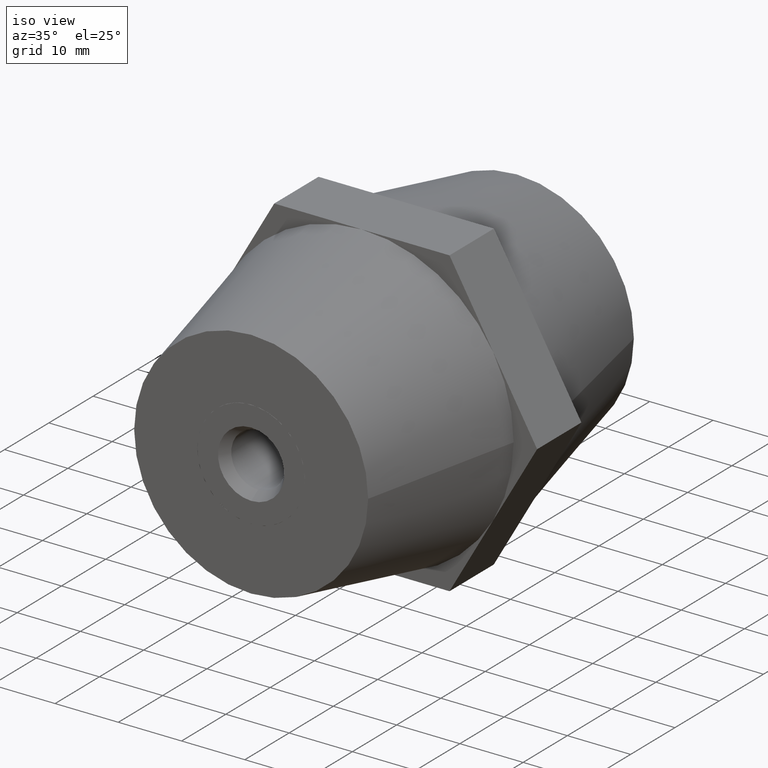
[diagram: clean part render]
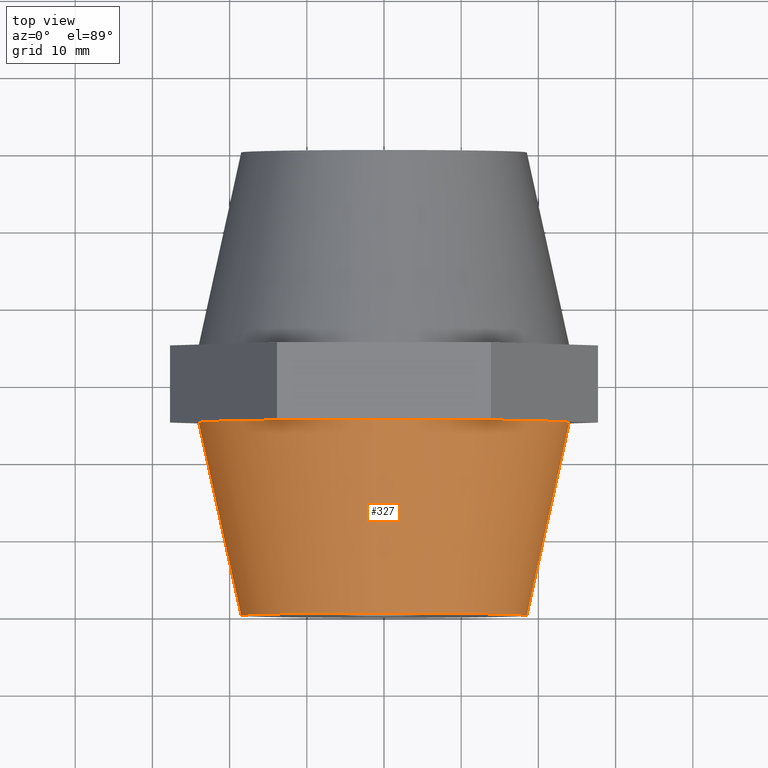
[diagram: tour spotlight — one face highlighted and labeled with its STEP entity id]
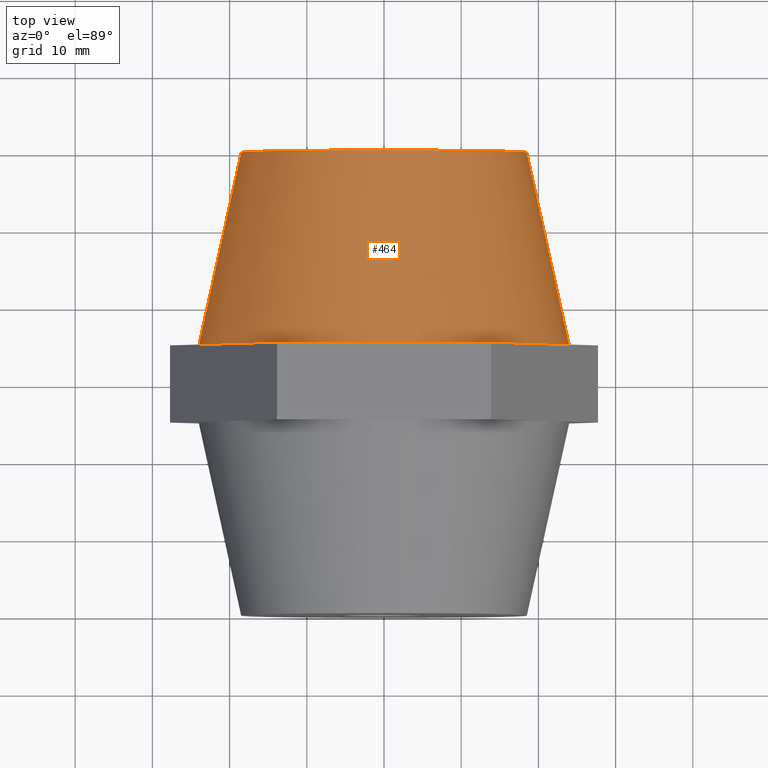
[diagram: tour spotlight — one face highlighted and labeled with its STEP entity id]
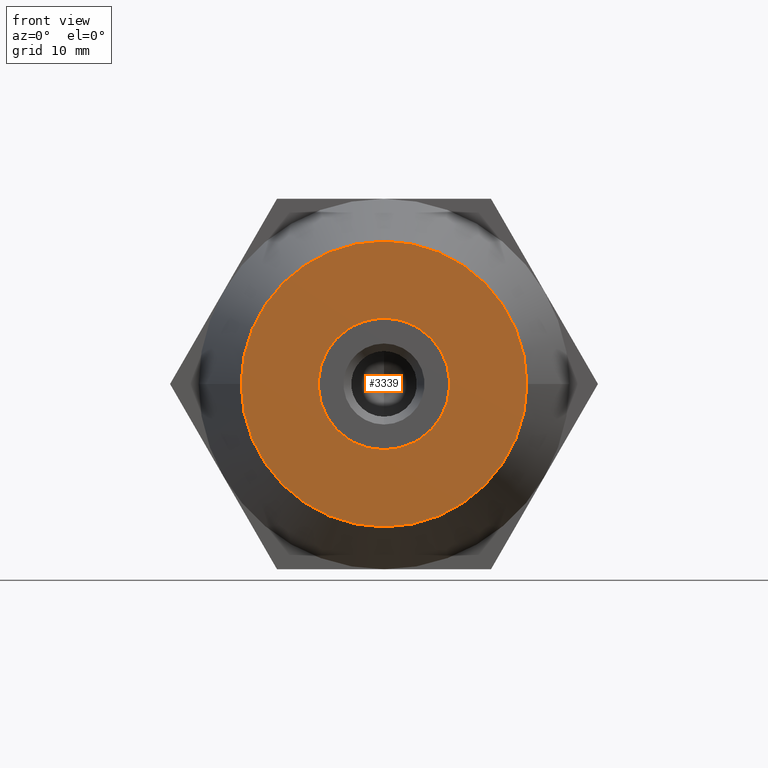
[diagram: tour spotlight — one face highlighted and labeled with its STEP entity id]
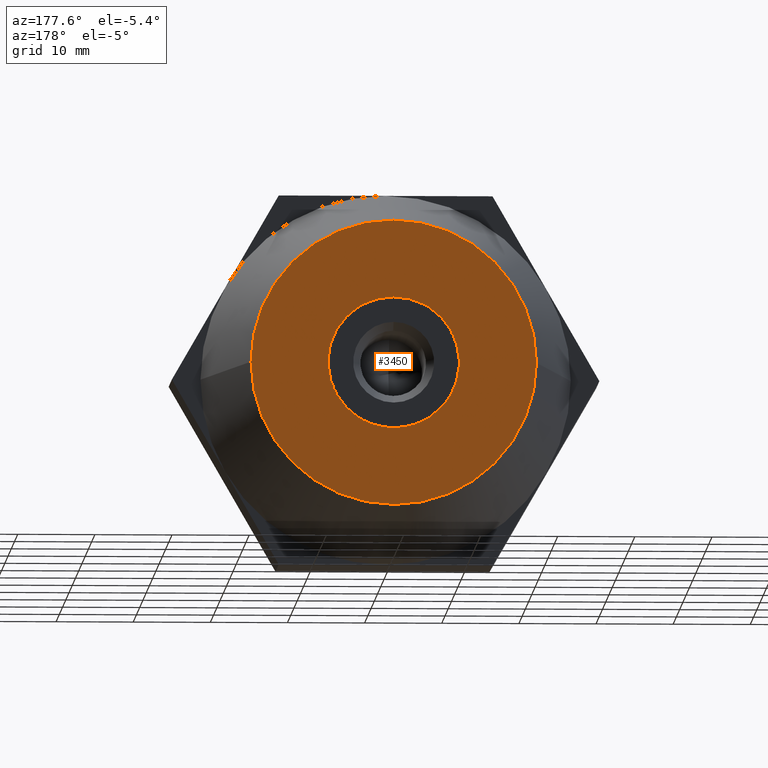
[diagram: tour spotlight — one face highlighted and labeled with its STEP entity id]
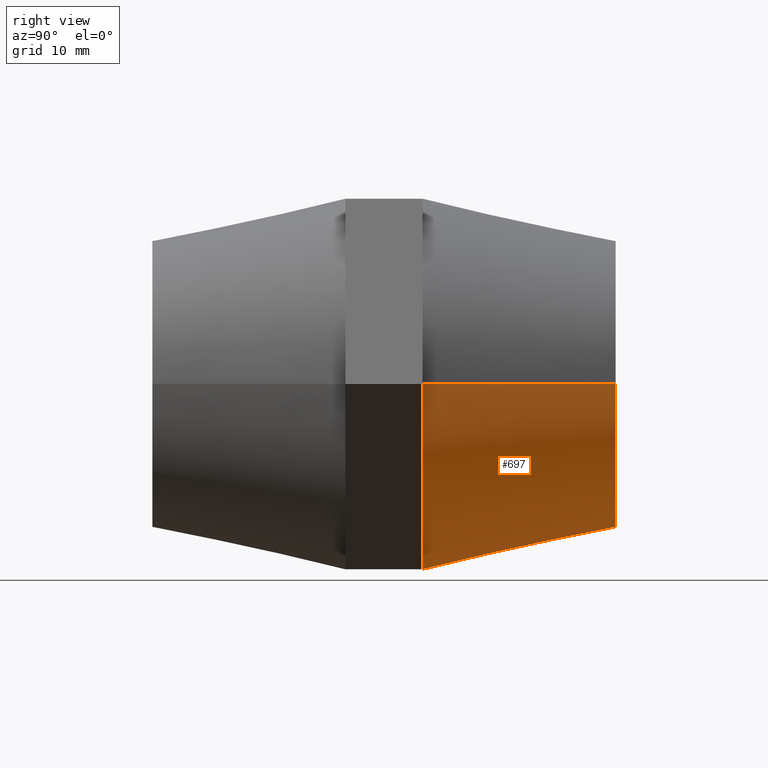
[diagram: tour spotlight — one face highlighted and labeled with its STEP entity id]
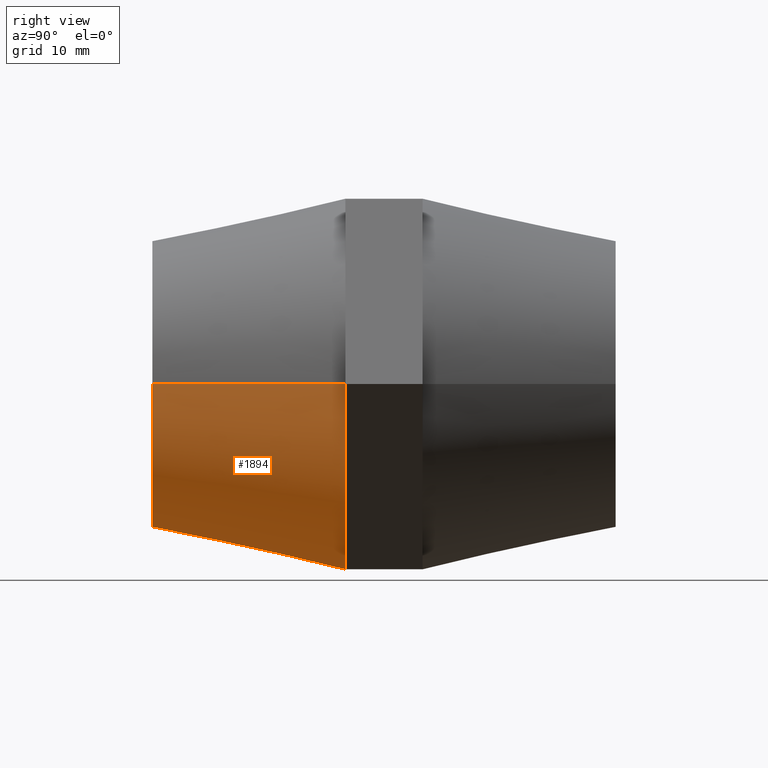
[diagram: tour spotlight — one face highlighted and labeled with its STEP entity id]
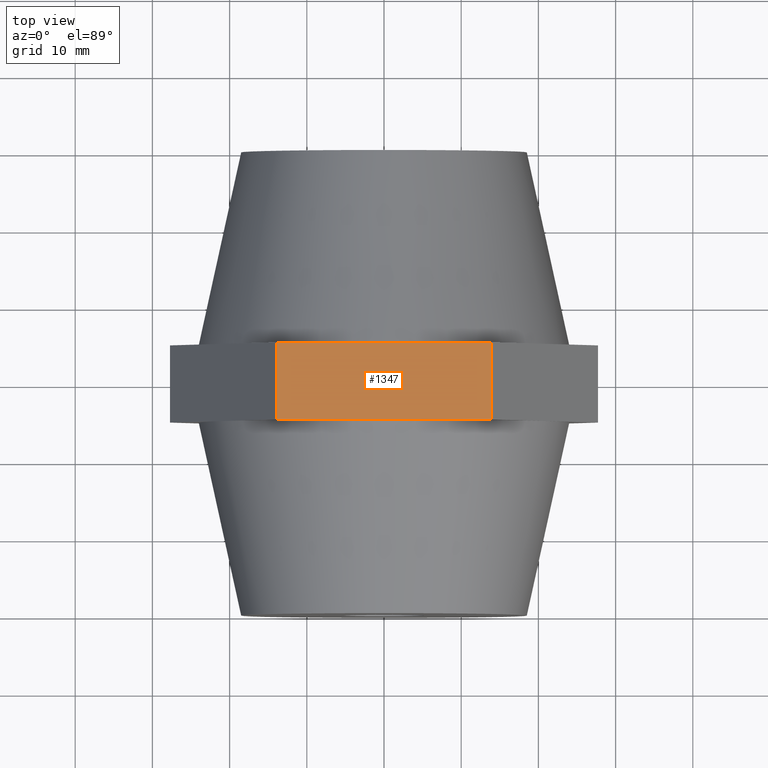
[diagram: tour spotlight — one face highlighted and labeled with its STEP entity id]
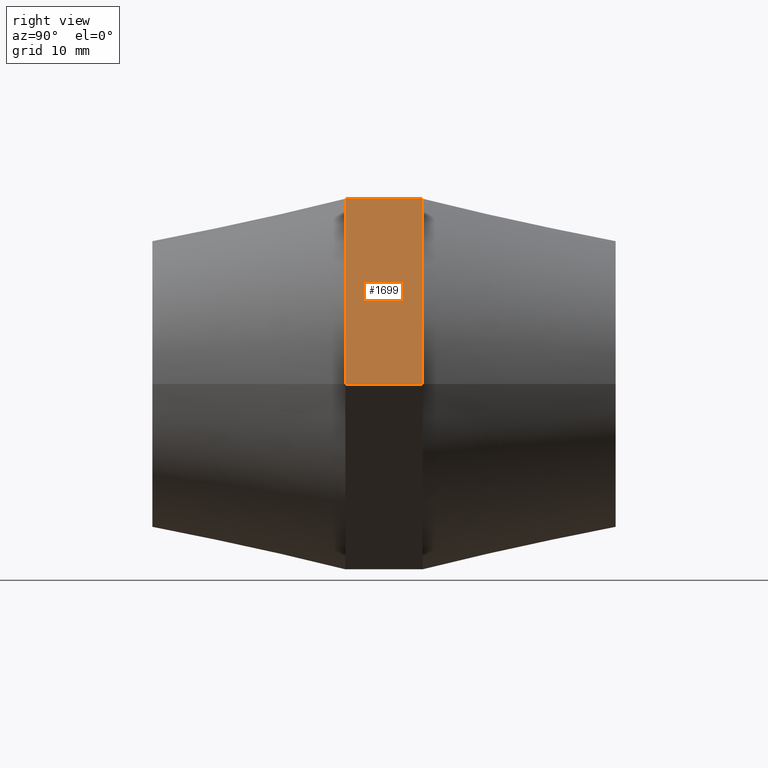
[diagram: tour spotlight — one face highlighted and labeled with its STEP entity id]
A machine part: a face-by-face anatomy tour. The part has 162 B-rep faces; the first image is the clean iso view, then the 8 largest visible faces are spotlighted one at a time (largest first), each with its STEP entity span.

Face 1 — top view, entity #327. In plain terms, the highlighted conical surface has half-angle 12.407 deg.
Definition (entity closure, byte-faithful):
#99 = DIRECTION ( 'NONE',  ( -1.000000000000000000, -1.875376730785737500E-016, 0.0000000000000000000 ) ) ;
#215 = CIRCLE ( 'NONE', #2376, 24.00000000000000000 ) ;
#228 = CARTESIAN_POINT ( 'NONE',  ( -20.78460969082650000, -5.000000000000000000, 12.00000000000000000 ) ) ;
#247 = CARTESIAN_POINT ( 'NONE',  ( 4.286263797015734900E-015, -5.000000000000000000, 6.466135099498040200E-016 ) ) ;
#270 = DIRECTION ( 'NONE',  ( 0.0000000000000000000, 1.000000000000000000, 0.0000000000000000000 ) ) ;
#327 = ADVANCED_FACE ( 'NONE', ( #2589 ), #1469, .T. ) ;
#440 = VERTEX_POINT ( 'NONE', #3892 ) ;
#480 = EDGE_CURVE ( 'NONE', #2529, #2316, #1755, .T. ) ;
#485 = EDGE_CURVE ( 'NONE', #440, #2135, #854, .T. ) ;
#579 = CARTESIAN_POINT ( 'NONE',  ( 1.281634599541417800E-015, -5.000000000000000000, 24.00000000000000000 ) ) ;
#699 = DIRECTION ( 'NONE',  ( 0.0000000000000000000, 1.000000000000000000, 0.0000000000000000000 ) ) ;
#759 = VERTEX_POINT ( 'NONE', #1194 ) ;
#818 = ORIENTED_EDGE ( 'NONE', *, *, #480, .F. ) ;
#854 = LINE ( 'NONE', #1175, #2072 ) ;
#874 = ORIENTED_EDGE ( 'NONE', *, *, #2423, .F. ) ;
#903 = EDGE_CURVE ( 'NONE', #1938, #1136, #3830, .T. ) ;
#1091 = ORIENTED_EDGE ( 'NONE', *, *, #903, .F. ) ;
#1108 = EDGE_CURVE ( 'NONE', #759, #1938, #1715, .T. ) ;
#1111 = DIRECTION ( 'NONE',  ( -1.000000000000000000, -1.084202172485504400E-016, 0.0000000000000000000 ) ) ;
#1136 = VERTEX_POINT ( 'NONE', #228 ) ;
#1170 = DIRECTION ( 'NONE',  ( 0.0000000000000000000, 1.000000000000000000, 0.0000000000000000000 ) ) ;
#1175 = CARTESIAN_POINT ( 'NONE',  ( 24.00000000000000400, -4.999999999999997300, 2.939152317953647900E-015 ) ) ;
#1194 = CARTESIAN_POINT ( 'NONE',  ( -18.49999999999999300, -30.00000000000000400, 0.0000000000000000000 ) ) ;
#1310 = CARTESIAN_POINT ( 'NONE',  ( 4.286263797015734900E-015, -5.000000000000000000, 0.0000000000000000000 ) ) ;
#1316 = CIRCLE ( 'NONE', #3623, 18.50000000000000000 ) ;
#1469 = CONICAL_SURFACE ( 'NONE', #1912, 24.00000000000000000, 0.2165503049760894300 ) ;
#1551 = CARTESIAN_POINT ( 'NONE',  ( 24.00000000000000400, -5.000000000000000000, 2.939152317953647900E-015 ) ) ;
#1646 = CARTESIAN_POINT ( 'NONE',  ( 4.286263797015734900E-015, -5.000000000000000000, 6.466135099498040200E-016 ) ) ;
#1715 = LINE ( 'NONE', #2648, #2327 ) ;
#1747 = DIRECTION ( 'NONE',  ( 0.0000000000000000000, 0.0000000000000000000, 1.000000000000000000 ) ) ;
#1753 = ORIENTED_EDGE ( 'NONE', *, *, #2677, .F. ) ;
#1755 = CIRCLE ( 'NONE', #2561, 24.00000000000000000 ) ;
#1912 = AXIS2_PLACEMENT_3D ( 'NONE', #3853, #3863, #1111 ) ;
#1929 = DIRECTION ( 'NONE',  ( 0.0000000000000000000, 0.0000000000000000000, 1.000000000000000000 ) ) ;
#1938 = VERTEX_POINT ( 'NONE', #2488 ) ;
#2072 = VECTOR ( 'NONE', #3937, 1000.000000000000000 ) ;
#2079 = AXIS2_PLACEMENT_3D ( 'NONE', #1310, #2547, #2277 ) ;
#2107 = EDGE_CURVE ( 'NONE', #759, #440, #1316, .T. ) ;
#2128 = DIRECTION ( 'NONE',  ( 0.0000000000000000000, 0.0000000000000000000, 1.000000000000000000 ) ) ;
#2135 = VERTEX_POINT ( 'NONE', #1551 ) ;
#2277 = DIRECTION ( 'NONE',  ( -1.000000000000000000, -1.084202172485504400E-016, 0.0000000000000000000 ) ) ;
#2316 = VERTEX_POINT ( 'NONE', #2452 ) ;
#2327 = VECTOR ( 'NONE', #3883, 1000.000000000000100 ) ;
#2376 = AXIS2_PLACEMENT_3D ( 'NONE', #247, #1170, #2128 ) ;
#2423 = EDGE_CURVE ( 'NONE', #2316, #2135, #215, .T. ) ;
#2428 = ORIENTED_EDGE ( 'NONE', *, *, #485, .T. ) ;
#2452 = CARTESIAN_POINT ( 'NONE',  ( 20.78460969082655300, -5.000000000000000000, 12.00000000000000000 ) ) ;
#2488 = CARTESIAN_POINT ( 'NONE',  ( -23.99999999999999600, -5.000000000000000000, 0.0000000000000000000 ) ) ;
#2529 = VERTEX_POINT ( 'NONE', #579 ) ;
#2547 = DIRECTION ( 'NONE',  ( -1.224646799147352000E-016, 1.000000000000000000, 0.0000000000000000000 ) ) ;
#2561 = AXIS2_PLACEMENT_3D ( 'NONE', #3597, #270, #1747 ) ;
#2589 = FACE_OUTER_BOUND ( 'NONE', #2822, .T. ) ;
#2648 = CARTESIAN_POINT ( 'NONE',  ( -23.99999999999999600, -5.000000000000002700, 0.0000000000000000000 ) ) ;
#2677 = EDGE_CURVE ( 'NONE', #1136, #2529, #3444, .T. ) ;
#2822 = EDGE_LOOP ( 'NONE', ( #3165, #2428, #874, #818, #1753, #1091, #3873 ) ) ;
#3087 = CARTESIAN_POINT ( 'NONE',  ( 7.347880794884119900E-015, -30.00000000000000000, 0.0000000000000000000 ) ) ;
#3165 = ORIENTED_EDGE ( 'NONE', *, *, #2107, .T. ) ;
#3367 = AXIS2_PLACEMENT_3D ( 'NONE', #1646, #699, #1929 ) ;
#3444 = CIRCLE ( 'NONE', #2079, 24.00000000000000000 ) ;
#3461 = DIRECTION ( 'NONE',  ( -1.224646799147352000E-016, 1.000000000000000000, 0.0000000000000000000 ) ) ;
#3597 = CARTESIAN_POINT ( 'NONE',  ( 4.286263797015734900E-015, -5.000000000000000000, 6.466135099498040200E-016 ) ) ;
#3623 = AXIS2_PLACEMENT_3D ( 'NONE', #3087, #3461, #99 ) ;
#3830 = CIRCLE ( 'NONE', #3367, 24.00000000000000000 ) ;
#3853 = CARTESIAN_POINT ( 'NONE',  ( 4.286263797015734900E-015, -5.000000000000000000, 0.0000000000000000000 ) ) ;
#3863 = DIRECTION ( 'NONE',  ( -1.224646799147352000E-016, 1.000000000000000000, 0.0000000000000000000 ) ) ;
#3873 = ORIENTED_EDGE ( 'NONE', *, *, #1108, .F. ) ;
#3883 = DIRECTION ( 'NONE',  ( -0.2148617826751201000, 0.9766444667050898600, 0.0000000000000000000 ) ) ;
#3892 = CARTESIAN_POINT ( 'NONE',  ( 18.50000000000000700, -29.99999999999999600, 2.602374448188125800E-015 ) ) ;
#3937 = DIRECTION ( 'NONE',  ( 0.2148617826751198800, 0.9766444667050899800, 2.631297944121799100E-017 ) ) ;

Face 2 — top view, entity #464. In plain terms, the highlighted conical surface has half-angle 12.407 deg.
Definition (entity closure, byte-faithful):
#14 = EDGE_CURVE ( 'NONE', #2596, #37, #582, .T. ) ;
#37 = VERTEX_POINT ( 'NONE', #467 ) ;
#82 = DIRECTION ( 'NONE',  ( 0.2148617826751201000, -0.9766444667050898600, 0.0000000000000000000 ) ) ;
#92 = CARTESIAN_POINT ( 'NONE',  ( 24.00000000000000400, 5.000000000000003600, 0.0000000000000000000 ) ) ;
#168 = DIRECTION ( 'NONE',  ( -1.000000000000000000, -1.084202172485504400E-016, 0.0000000000000000000 ) ) ;
#203 = EDGE_CURVE ( 'NONE', #2291, #2117, #3836, .T. ) ;
#218 = AXIS2_PLACEMENT_3D ( 'NONE', #1323, #2562, #735 ) ;
#229 = ORIENTED_EDGE ( 'NONE', *, *, #366, .T. ) ;
#236 = FACE_OUTER_BOUND ( 'NONE', #2371, .T. ) ;
#366 = EDGE_CURVE ( 'NONE', #37, #2299, #2666, .T. ) ;
#369 = CARTESIAN_POINT ( 'NONE',  ( -24.00000000000000000, 4.999999999999996400, 2.939152317953648300E-015 ) ) ;
#464 = ADVANCED_FACE ( 'NONE', ( #236 ), #1094, .T. ) ;
#467 = CARTESIAN_POINT ( 'NONE',  ( 20.78460969082655300, 5.000000000000000000, 12.00000000000000000 ) ) ;
#582 = CIRCLE ( 'NONE', #1609, 24.00000000000000000 ) ;
#604 = EDGE_CURVE ( 'NONE', #2291, #1764, #3502, .T. ) ;
#735 = DIRECTION ( 'NONE',  ( -1.000000000000000000, -1.084202172485504400E-016, 0.0000000000000000000 ) ) ;
#995 = EDGE_CURVE ( 'NONE', #2463, #2596, #1623, .T. ) ;
#1030 = DIRECTION ( 'NONE',  ( -1.000000000000000000, -1.875376730785737500E-016, 0.0000000000000000000 ) ) ;
#1094 = CONICAL_SURFACE ( 'NONE', #3143, 18.50000000000000000, 0.2165503049760894300 ) ;
#1106 = DIRECTION ( 'NONE',  ( -1.224646799147352000E-016, 1.000000000000000000, 0.0000000000000000000 ) ) ;
#1138 = CARTESIAN_POINT ( 'NONE',  ( -2.774555597924435200E-031, 30.00000000000000000, 0.0000000000000000000 ) ) ;
#1149 = DIRECTION ( 'NONE',  ( -1.000000000000000000, -1.084202172485504400E-016, 0.0000000000000000000 ) ) ;
#1323 = CARTESIAN_POINT ( 'NONE',  ( 3.061616997868379900E-015, 5.000000000000000000, 0.0000000000000000000 ) ) ;
#1402 = ORIENTED_EDGE ( 'NONE', *, *, #2685, .T. ) ;
#1520 = CARTESIAN_POINT ( 'NONE',  ( 3.061616997868379900E-015, 5.000000000000000000, 0.0000000000000000000 ) ) ;
#1595 = ORIENTED_EDGE ( 'NONE', *, *, #14, .T. ) ;
#1609 = AXIS2_PLACEMENT_3D ( 'NONE', #1729, #1679, #3536 ) ;
#1623 = CIRCLE ( 'NONE', #3272, 24.00000000000000000 ) ;
#1679 = DIRECTION ( 'NONE',  ( -1.224646799147352000E-016, 1.000000000000000000, 0.0000000000000000000 ) ) ;
#1729 = CARTESIAN_POINT ( 'NONE',  ( 3.061616997868379900E-015, 5.000000000000000000, 0.0000000000000000000 ) ) ;
#1764 = VERTEX_POINT ( 'NONE', #369 ) ;
#1882 = CARTESIAN_POINT ( 'NONE',  ( -3.004629197474319600E-015, 5.000000000000000000, 24.00000000000000000 ) ) ;
#1896 = CIRCLE ( 'NONE', #218, 24.00000000000000000 ) ;
#1989 = ORIENTED_EDGE ( 'NONE', *, *, #604, .T. ) ;
#2117 = VERTEX_POINT ( 'NONE', #2402 ) ;
#2134 = CARTESIAN_POINT ( 'NONE',  ( 18.50000000000000000, 30.00000000000000400, 0.0000000000000000000 ) ) ;
#2209 = CARTESIAN_POINT ( 'NONE',  ( -18.50000000000000000, 29.99999999999999600, 2.602374448188125800E-015 ) ) ;
#2264 = AXIS2_PLACEMENT_3D ( 'NONE', #1520, #3603, #1149 ) ;
#2289 = ORIENTED_EDGE ( 'NONE', *, *, #3244, .F. ) ;
#2291 = VERTEX_POINT ( 'NONE', #2209 ) ;
#2299 = VERTEX_POINT ( 'NONE', #92 ) ;
#2371 = EDGE_LOOP ( 'NONE', ( #3285, #1989, #1402, #2645, #1595, #229, #2289 ) ) ;
#2402 = CARTESIAN_POINT ( 'NONE',  ( 18.50000000000000000, 30.00000000000000400, 0.0000000000000000000 ) ) ;
#2414 = DIRECTION ( 'NONE',  ( -0.2148617826751198800, -0.9766444667050899800, 2.631297944121799100E-017 ) ) ;
#2463 = VERTEX_POINT ( 'NONE', #2726 ) ;
#2472 = CARTESIAN_POINT ( 'NONE',  ( -18.50000000000000000, 29.99999999999999600, 2.265596578422603400E-015 ) ) ;
#2562 = DIRECTION ( 'NONE',  ( -1.224646799147352000E-016, 1.000000000000000000, 0.0000000000000000000 ) ) ;
#2596 = VERTEX_POINT ( 'NONE', #1882 ) ;
#2601 = CARTESIAN_POINT ( 'NONE',  ( -2.774555597924435200E-031, 30.00000000000000000, 0.0000000000000000000 ) ) ;
#2645 = ORIENTED_EDGE ( 'NONE', *, *, #995, .T. ) ;
#2663 = VECTOR ( 'NONE', #2414, 1000.000000000000000 ) ;
#2666 = CIRCLE ( 'NONE', #2264, 24.00000000000000000 ) ;
#2685 = EDGE_CURVE ( 'NONE', #1764, #2463, #1896, .T. ) ;
#2726 = CARTESIAN_POINT ( 'NONE',  ( -20.78460969082655300, 5.000000000000000000, 12.00000000000000000 ) ) ;
#2926 = CARTESIAN_POINT ( 'NONE',  ( 3.061616997868379900E-015, 5.000000000000000000, 0.0000000000000000000 ) ) ;
#2928 = AXIS2_PLACEMENT_3D ( 'NONE', #2601, #3185, #1030 ) ;
#2983 = DIRECTION ( 'NONE',  ( 1.000000000000000000, 1.875376730785737500E-016, 0.0000000000000000000 ) ) ;
#3143 = AXIS2_PLACEMENT_3D ( 'NONE', #1138, #3620, #2983 ) ;
#3185 = DIRECTION ( 'NONE',  ( -1.224646799147352000E-016, 1.000000000000000000, 0.0000000000000000000 ) ) ;
#3244 = EDGE_CURVE ( 'NONE', #2117, #2299, #3732, .T. ) ;
#3272 = AXIS2_PLACEMENT_3D ( 'NONE', #2926, #1106, #168 ) ;
#3285 = ORIENTED_EDGE ( 'NONE', *, *, #203, .F. ) ;
#3502 = LINE ( 'NONE', #2472, #2663 ) ;
#3536 = DIRECTION ( 'NONE',  ( -1.000000000000000000, -1.084202172485504400E-016, 0.0000000000000000000 ) ) ;
#3603 = DIRECTION ( 'NONE',  ( -1.224646799147352000E-016, 1.000000000000000000, 0.0000000000000000000 ) ) ;
#3620 = DIRECTION ( 'NONE',  ( 1.224646799147352000E-016, -1.000000000000000000, 0.0000000000000000000 ) ) ;
#3732 = LINE ( 'NONE', #2134, #3906 ) ;
#3836 = CIRCLE ( 'NONE', #2928, 18.50000000000000000 ) ;
#3906 = VECTOR ( 'NONE', #82, 1000.000000000000100 ) ;

Face 3 — front view, entity #3339. In plain terms, the highlighted planar face has unit normal (0, -1, 0).
Definition (entity closure, byte-faithful):
#76 = VECTOR ( 'NONE', #3702, 1000.000000000000000 ) ;
#99 = DIRECTION ( 'NONE',  ( -1.000000000000000000, -1.875376730785737500E-016, 0.0000000000000000000 ) ) ;
#116 = CARTESIAN_POINT ( 'NONE',  ( -8.500000000000000000, -30.00000000000000000, 0.0000000000000000000 ) ) ;
#123 = CARTESIAN_POINT ( 'NONE',  ( 1.042174426074395900E-015, -30.00000000000000000, 0.0000000000000000000 ) ) ;
#177 = DIRECTION ( 'NONE',  ( -1.224646799147352000E-016, 1.000000000000000000, -0.0000000000000000000 ) ) ;
#188 = EDGE_LOOP ( 'NONE', ( #243, #850, #2855, #3310, #1189, #2656, #902, #977, #687, #1395, #2912, #1054, #1716 ) ) ;
#227 = VERTEX_POINT ( 'NONE', #1352 ) ;
#243 = ORIENTED_EDGE ( 'NONE', *, *, #2631, .T. ) ;
#262 = CIRCLE ( 'NONE', #1392, 8.509999999999999800 ) ;
#263 = VERTEX_POINT ( 'NONE', #1041 ) ;
#320 = VERTEX_POINT ( 'NONE', #2023 ) ;
#397 = AXIS2_PLACEMENT_3D ( 'NONE', #3570, #177, #1112 ) ;
#421 = AXIS2_PLACEMENT_3D ( 'NONE', #3440, #990, #2211 ) ;
#440 = VERTEX_POINT ( 'NONE', #3892 ) ;
#497 = VECTOR ( 'NONE', #2770, 1000.000000000000000 ) ;
#511 = VERTEX_POINT ( 'NONE', #521 ) ;
#521 = CARTESIAN_POINT ( 'NONE',  ( 3.892823573006059900, -30.00000000000000000, 7.567431838440859900 ) ) ;
#530 = DIRECTION ( 'NONE',  ( 1.000000000000000000, 0.0000000000000000000, -1.776356839400250500E-015 ) ) ;
#631 = VERTEX_POINT ( 'NONE', #3664 ) ;
#677 = VERTEX_POINT ( 'NONE', #878 ) ;
#687 = ORIENTED_EDGE ( 'NONE', *, *, #3582, .T. ) ;
#701 = CARTESIAN_POINT ( 'NONE',  ( -9.625000000000000000, -30.00000000000000000, 15.37195091717380000 ) ) ;
#759 = VERTEX_POINT ( 'NONE', #1194 ) ;
#808 = VERTEX_POINT ( 'NONE', #3045 ) ;
#850 = ORIENTED_EDGE ( 'NONE', *, *, #2053, .T. ) ;
#878 = CARTESIAN_POINT ( 'NONE',  ( 4.607176426993880200, -30.00000000000000000, -7.155000025894629800 ) ) ;
#902 = ORIENTED_EDGE ( 'NONE', *, *, #2890, .T. ) ;
#921 = CARTESIAN_POINT ( 'NONE',  ( 1.042174426074395900E-015, -30.00000000000000000, 0.0000000000000000000 ) ) ;
#930 = DIRECTION ( 'NONE',  ( 0.8660254037844387100, 1.060575238724905700E-016, -0.4999999999999998900 ) ) ;
#977 = ORIENTED_EDGE ( 'NONE', *, *, #1871, .T. ) ;
#990 = DIRECTION ( 'NONE',  ( -1.224646799147352000E-016, 1.000000000000000000, 0.0000000000000000000 ) ) ;
#1041 = CARTESIAN_POINT ( 'NONE',  ( -4.607176426993929900, -30.00000000000000000, 7.155000025894589800 ) ) ;
#1054 = ORIENTED_EDGE ( 'NONE', *, *, #1908, .T. ) ;
#1112 = DIRECTION ( 'NONE',  ( 1.000000000000000000, 0.0000000000000000000, -2.664535259100375700E-015 ) ) ;
#1172 = DIRECTION ( 'NONE',  ( 0.8660254037844387100, 1.060575238724905700E-016, 0.4999999999999998900 ) ) ;
#1184 = AXIS2_PLACEMENT_3D ( 'NONE', #921, #3673, #530 ) ;
#1189 = ORIENTED_EDGE ( 'NONE', *, *, #2512, .T. ) ;
#1194 = CARTESIAN_POINT ( 'NONE',  ( -18.49999999999999300, -30.00000000000000400, 0.0000000000000000000 ) ) ;
#1208 = CIRCLE ( 'NONE', #421, 18.50000000000000000 ) ;
#1230 = DIRECTION ( 'NONE',  ( 1.224646799147352000E-016, -1.000000000000000000, 0.0000000000000000000 ) ) ;
#1238 = DIRECTION ( 'NONE',  ( -1.224646799147352000E-016, 1.000000000000000000, -0.0000000000000000000 ) ) ;
#1309 = CARTESIAN_POINT ( 'NONE',  ( 1.042174426074395900E-015, -30.00000000000000000, 0.0000000000000000000 ) ) ;
#1316 = CIRCLE ( 'NONE', #3623, 18.50000000000000000 ) ;
#1346 = VERTEX_POINT ( 'NONE', #3653 ) ;
#1352 = CARTESIAN_POINT ( 'NONE',  ( 3.892823573006124700, -30.00000000000000000, -7.567431838440829700 ) ) ;
#1392 = AXIS2_PLACEMENT_3D ( 'NONE', #3560, #2591, #2444 ) ;
#1394 = EDGE_CURVE ( 'NONE', #227, #1913, #3739, .T. ) ;
#1395 = ORIENTED_EDGE ( 'NONE', *, *, #2445, .T. ) ;
#1399 = CARTESIAN_POINT ( 'NONE',  ( -3.892823573006150000, -30.00000000000000000, -7.567431838440819900 ) ) ;
#1407 = AXIS2_PLACEMENT_3D ( 'NONE', #1309, #2250, #2870 ) ;
#1431 = ORIENTED_EDGE ( 'NONE', *, *, #2107, .F. ) ;
#1489 = VERTEX_POINT ( 'NONE', #2138 ) ;
#1552 = CARTESIAN_POINT ( 'NONE',  ( -9.625000000000000000, -30.00000000000000000, -15.37195091717380000 ) ) ;
#1585 = DIRECTION ( 'NONE',  ( 1.000000000000000000, 0.0000000000000000000, 0.0000000000000000000 ) ) ;
#1638 = AXIS2_PLACEMENT_3D ( 'NONE', #2178, #1238, #1585 ) ;
#1659 = VECTOR ( 'NONE', #1172, 1000.000000000000000 ) ;
#1663 = FACE_OUTER_BOUND ( 'NONE', #3821, .T. ) ;
#1667 = DIRECTION ( 'NONE',  ( -1.224646799147352000E-016, 1.000000000000000000, -0.0000000000000000000 ) ) ;
#1716 = ORIENTED_EDGE ( 'NONE', *, *, #2205, .T. ) ;
#1867 = DIRECTION ( 'NONE',  ( 1.000000000000000000, 0.0000000000000000000, 0.0000000000000000000 ) ) ;
#1871 = EDGE_CURVE ( 'NONE', #2185, #1346, #2955, .T. ) ;
#1895 = CARTESIAN_POINT ( 'NONE',  ( 8.500000000000000000, -30.00000000000000000, 9.544116274330180600E-015 ) ) ;
#1908 = EDGE_CURVE ( 'NONE', #1489, #808, #1909, .T. ) ;
#1909 = CIRCLE ( 'NONE', #397, 8.509999999999999800 ) ;
#1913 = VERTEX_POINT ( 'NONE', #1399 ) ;
#1927 = CARTESIAN_POINT ( 'NONE',  ( -4.607176426993850000, -30.00000000000000000, -7.155000025894639600 ) ) ;
#2023 = CARTESIAN_POINT ( 'NONE',  ( 4.607176426993929900, -30.00000000000000000, 7.155000025894589800 ) ) ;
#2053 = EDGE_CURVE ( 'NONE', #320, #631, #3047, .T. ) ;
#2107 = EDGE_CURVE ( 'NONE', #759, #440, #1316, .T. ) ;
#2138 = CARTESIAN_POINT ( 'NONE',  ( -3.892823573006065200, -30.00000000000000000, 7.567431838440859900 ) ) ;
#2149 = DIRECTION ( 'NONE',  ( -1.224646799147352000E-016, 1.000000000000000000, -0.0000000000000000000 ) ) ;
#2178 = CARTESIAN_POINT ( 'NONE',  ( 1.042174426074395900E-015, -30.00000000000000000, 0.0000000000000000000 ) ) ;
#2185 = VERTEX_POINT ( 'NONE', #1927 ) ;
#2205 = EDGE_CURVE ( 'NONE', #808, #511, #2694, .T. ) ;
#2211 = DIRECTION ( 'NONE',  ( -1.000000000000000000, -1.875376730785737500E-016, 0.0000000000000000000 ) ) ;
#2250 = DIRECTION ( 'NONE',  ( -1.224646799147352000E-016, 1.000000000000000000, -0.0000000000000000000 ) ) ;
#2273 = CIRCLE ( 'NONE', #2606, 8.509999999999999800 ) ;
#2301 = ORIENTED_EDGE ( 'NONE', *, *, #3599, .F. ) ;
#2353 = DIRECTION ( 'NONE',  ( -0.8660254037844387100, -1.060575238724905700E-016, 0.4999999999999998900 ) ) ;
#2444 = DIRECTION ( 'NONE',  ( 1.000000000000000000, 0.0000000000000000000, 0.0000000000000000000 ) ) ;
#2445 = EDGE_CURVE ( 'NONE', #3199, #263, #262, .T. ) ;
#2455 = LINE ( 'NONE', #3935, #1659 ) ;
#2511 = LINE ( 'NONE', #1895, #76 ) ;
#2512 = EDGE_CURVE ( 'NONE', #677, #227, #3137, .T. ) ;
#2565 = DIRECTION ( 'NONE',  ( 1.000000000000000000, 0.0000000000000000000, 0.0000000000000000000 ) ) ;
#2574 = EDGE_CURVE ( 'NONE', #631, #3924, #2511, .T. ) ;
#2591 = DIRECTION ( 'NONE',  ( -1.224646799147352000E-016, 1.000000000000000000, -0.0000000000000000000 ) ) ;
#2606 = AXIS2_PLACEMENT_3D ( 'NONE', #2788, #2149, #1867 ) ;
#2631 = EDGE_CURVE ( 'NONE', #511, #320, #3528, .T. ) ;
#2656 = ORIENTED_EDGE ( 'NONE', *, *, #1394, .T. ) ;
#2669 = AXIS2_PLACEMENT_3D ( 'NONE', #3127, #1230, #3378 ) ;
#2694 = CIRCLE ( 'NONE', #1407, 8.509999999999999800 ) ;
#2698 = CARTESIAN_POINT ( 'NONE',  ( -18.12500000000000000, -30.00000000000000000, 0.6495190528383209000 ) ) ;
#2770 = DIRECTION ( 'NONE',  ( -0.8660254037844387100, -1.060575238724905700E-016, -0.4999999999999998900 ) ) ;
#2788 = CARTESIAN_POINT ( 'NONE',  ( 1.042174426074395900E-015, -30.00000000000000000, 0.0000000000000000000 ) ) ;
#2844 = DIRECTION ( 'NONE',  ( 0.0000000000000000000, 0.0000000000000000000, 1.000000000000000000 ) ) ;
#2855 = ORIENTED_EDGE ( 'NONE', *, *, #2574, .T. ) ;
#2870 = DIRECTION ( 'NONE',  ( 1.000000000000000000, 0.0000000000000000000, 0.0000000000000000000 ) ) ;
#2890 = EDGE_CURVE ( 'NONE', #1913, #2185, #3194, .T. ) ;
#2912 = ORIENTED_EDGE ( 'NONE', *, *, #3810, .T. ) ;
#2955 = CIRCLE ( 'NONE', #3679, 8.509999999999999800 ) ;
#3045 = CARTESIAN_POINT ( 'NONE',  ( -3.851859888774471700E-031, -30.00000000000000000, 8.509999999999999800 ) ) ;
#3047 = CIRCLE ( 'NONE', #1184, 8.509999999999999800 ) ;
#3062 = PLANE ( 'NONE',  #2669 ) ;
#3065 = CARTESIAN_POINT ( 'NONE',  ( 8.500000000000000000, -30.00000000000000000, -0.4124318125462934600 ) ) ;
#3087 = CARTESIAN_POINT ( 'NONE',  ( 7.347880794884119900E-015, -30.00000000000000000, 0.0000000000000000000 ) ) ;
#3127 = CARTESIAN_POINT ( 'NONE',  ( -18.50000000000000000, -30.00000000000000000, 0.0000000000000000000 ) ) ;
#3137 = LINE ( 'NONE', #1552, #497 ) ;
#3194 = LINE ( 'NONE', #2698, #3829 ) ;
#3199 = VERTEX_POINT ( 'NONE', #3669 ) ;
#3290 = EDGE_CURVE ( 'NONE', #3924, #677, #2273, .T. ) ;
#3310 = ORIENTED_EDGE ( 'NONE', *, *, #3290, .T. ) ;
#3339 = ADVANCED_FACE ( 'NONE', ( #1663, #3439 ), #3062, .T. ) ;
#3378 = DIRECTION ( 'NONE',  ( 1.000000000000000000, 1.224646799147352000E-016, 0.0000000000000000000 ) ) ;
#3427 = VECTOR ( 'NONE', #930, 1000.000000000000000 ) ;
#3439 = FACE_BOUND ( 'NONE', #188, .T. ) ;
#3440 = CARTESIAN_POINT ( 'NONE',  ( 7.347880794884119900E-015, -30.00000000000000000, 0.0000000000000000000 ) ) ;
#3461 = DIRECTION ( 'NONE',  ( -1.224646799147352000E-016, 1.000000000000000000, 0.0000000000000000000 ) ) ;
#3528 = LINE ( 'NONE', #701, #3427 ) ;
#3560 = CARTESIAN_POINT ( 'NONE',  ( 1.042174426074395900E-015, -30.00000000000000000, 0.0000000000000000000 ) ) ;
#3570 = CARTESIAN_POINT ( 'NONE',  ( 1.042174426074395900E-015, -30.00000000000000000, 0.0000000000000000000 ) ) ;
#3582 = EDGE_CURVE ( 'NONE', #1346, #3199, #3619, .T. ) ;
#3599 = EDGE_CURVE ( 'NONE', #440, #759, #1208, .T. ) ;
#3619 = LINE ( 'NONE', #116, #3671 ) ;
#3623 = AXIS2_PLACEMENT_3D ( 'NONE', #3087, #3461, #99 ) ;
#3653 = CARTESIAN_POINT ( 'NONE',  ( -8.500000000000000000, -30.00000000000000000, -0.4124318125461740000 ) ) ;
#3664 = CARTESIAN_POINT ( 'NONE',  ( 8.500000000000000000, -30.00000000000000000, 0.4124318125462754800 ) ) ;
#3669 = CARTESIAN_POINT ( 'NONE',  ( -8.500000000000000000, -30.00000000000000000, 0.4124318125461740000 ) ) ;
#3671 = VECTOR ( 'NONE', #2844, 1000.000000000000000 ) ;
#3673 = DIRECTION ( 'NONE',  ( -1.224646799147352000E-016, 1.000000000000000000, -0.0000000000000000000 ) ) ;
#3679 = AXIS2_PLACEMENT_3D ( 'NONE', #123, #1667, #2565 ) ;
#3702 = DIRECTION ( 'NONE',  ( 3.534857879381550100E-016, 4.328952387425414700E-032, -1.000000000000000000 ) ) ;
#3739 = CIRCLE ( 'NONE', #1638, 8.509999999999999800 ) ;
#3810 = EDGE_CURVE ( 'NONE', #263, #1489, #2455, .T. ) ;
#3821 = EDGE_LOOP ( 'NONE', ( #1431, #2301 ) ) ;
#3829 = VECTOR ( 'NONE', #2353, 1000.000000000000000 ) ;
#3892 = CARTESIAN_POINT ( 'NONE',  ( 18.50000000000000700, -29.99999999999999600, 2.602374448188125800E-015 ) ) ;
#3924 = VERTEX_POINT ( 'NONE', #3065 ) ;
#3935 = CARTESIAN_POINT ( 'NONE',  ( -18.12500000000000000, -30.00000000000000000, -0.6495190528383290000 ) ) ;

Face 4 — auxiliary view, entity #3450. In plain terms, the highlighted planar face has unit normal (-0, 1, 0).
Definition (entity closure, byte-faithful):
#11 = CARTESIAN_POINT ( 'NONE',  ( 3.892823573006400000, 30.00000000000000000, -7.567431838440669800 ) ) ;
#29 = ORIENTED_EDGE ( 'NONE', *, *, #1724, .T. ) ;
#34 = CARTESIAN_POINT ( 'NONE',  ( -1.042174426074394000E-015, 30.00000000000000000, 0.0000000000000000000 ) ) ;
#40 = CARTESIAN_POINT ( 'NONE',  ( 8.500000000000000000, 30.00000000000000000, -9.544116274330190100E-015 ) ) ;
#77 = CARTESIAN_POINT ( 'NONE',  ( -18.12500000000000000, 30.00000000000000000, -0.6495190528383260100 ) ) ;
#132 = DIRECTION ( 'NONE',  ( -1.000000000000000000, 0.0000000000000000000, 0.0000000000000000000 ) ) ;
#151 = VERTEX_POINT ( 'NONE', #3119 ) ;
#203 = EDGE_CURVE ( 'NONE', #2291, #2117, #3836, .T. ) ;
#217 = DIRECTION ( 'NONE',  ( -1.000000000000000000, 0.0000000000000000000, 0.0000000000000000000 ) ) ;
#233 = ORIENTED_EDGE ( 'NONE', *, *, #276, .T. ) ;
#246 = DIRECTION ( 'NONE',  ( 1.224646799147352000E-016, -1.000000000000000000, -0.0000000000000000000 ) ) ;
#257 = VECTOR ( 'NONE', #688, 1000.000000000000000 ) ;
#273 = ORIENTED_EDGE ( 'NONE', *, *, #2183, .T. ) ;
#276 = EDGE_CURVE ( 'NONE', #1415, #1293, #768, .T. ) ;
#323 = DIRECTION ( 'NONE',  ( -1.000000000000000000, 0.0000000000000000000, 0.0000000000000000000 ) ) ;
#353 = DIRECTION ( 'NONE',  ( -1.000000000000000000, 0.0000000000000000000, -3.552713678800500900E-015 ) ) ;
#386 = DIRECTION ( 'NONE',  ( -0.8660254037844387100, -1.060575238724905700E-016, 0.4999999999999998900 ) ) ;
#388 = EDGE_LOOP ( 'NONE', ( #3231, #518 ) ) ;
#389 = DIRECTION ( 'NONE',  ( -1.000000000000000000, -1.875376730785737500E-016, 0.0000000000000000000 ) ) ;
#407 = EDGE_CURVE ( 'NONE', #2260, #809, #1381, .T. ) ;
#431 = AXIS2_PLACEMENT_3D ( 'NONE', #34, #2772, #323 ) ;
#517 = CARTESIAN_POINT ( 'NONE',  ( -1.042174426074394000E-015, 30.00000000000000000, 0.0000000000000000000 ) ) ;
#518 = ORIENTED_EDGE ( 'NONE', *, *, #203, .T. ) ;
#599 = AXIS2_PLACEMENT_3D ( 'NONE', #3082, #2159, #353 ) ;
#688 = DIRECTION ( 'NONE',  ( 3.534857879381550100E-016, 4.328952387425414700E-032, 1.000000000000000000 ) ) ;
#713 = ORIENTED_EDGE ( 'NONE', *, *, #2607, .T. ) ;
#721 = DIRECTION ( 'NONE',  ( 1.224646799147352000E-016, -1.000000000000000000, -0.0000000000000000000 ) ) ;
#768 = LINE ( 'NONE', #2874, #3551 ) ;
#783 = EDGE_CURVE ( 'NONE', #1293, #2515, #3921, .T. ) ;
#809 = VERTEX_POINT ( 'NONE', #2495 ) ;
#890 = EDGE_CURVE ( 'NONE', #2117, #2291, #2278, .T. ) ;
#1004 = ORIENTED_EDGE ( 'NONE', *, *, #2127, .T. ) ;
#1030 = DIRECTION ( 'NONE',  ( -1.000000000000000000, -1.875376730785737500E-016, 0.0000000000000000000 ) ) ;
#1075 = DIRECTION ( 'NONE',  ( -1.000000000000000000, 0.0000000000000000000, 0.0000000000000000000 ) ) ;
#1150 = ORIENTED_EDGE ( 'NONE', *, *, #2727, .T. ) ;
#1174 = ORIENTED_EDGE ( 'NONE', *, *, #783, .T. ) ;
#1177 = CIRCLE ( 'NONE', #2069, 8.509999999999999800 ) ;
#1190 = VECTOR ( 'NONE', #1565, 1000.000000000000000 ) ;
#1210 = CARTESIAN_POINT ( 'NONE',  ( 8.500000000000000000, 30.00000000000000000, -0.4124318125458810200 ) ) ;
#1293 = VERTEX_POINT ( 'NONE', #2062 ) ;
#1325 = LINE ( 'NONE', #2081, #2702 ) ;
#1334 = DIRECTION ( 'NONE',  ( -1.000000000000000000, 0.0000000000000000000, 8.881784197001252300E-016 ) ) ;
#1381 = CIRCLE ( 'NONE', #3514, 8.509999999999999800 ) ;
#1415 = VERTEX_POINT ( 'NONE', #11 ) ;
#1428 = CIRCLE ( 'NONE', #599, 8.509999999999999800 ) ;
#1448 = DIRECTION ( 'NONE',  ( -1.000000000000000000, 0.0000000000000000000, 0.0000000000000000000 ) ) ;
#1474 = VERTEX_POINT ( 'NONE', #2501 ) ;
#1479 = CARTESIAN_POINT ( 'NONE',  ( -4.607176426993620000, 30.00000000000000000, 7.155000025894770100 ) ) ;
#1482 = ORIENTED_EDGE ( 'NONE', *, *, #1982, .T. ) ;
#1492 = AXIS2_PLACEMENT_3D ( 'NONE', #2557, #3794, #389 ) ;
#1536 = EDGE_CURVE ( 'NONE', #151, #3621, #1177, .T. ) ;
#1555 = CARTESIAN_POINT ( 'NONE',  ( 4.607176426993570200, 30.00000000000000000, 7.155000025894809200 ) ) ;
#1565 = DIRECTION ( 'NONE',  ( -0.8660254037844387100, -1.060575238724905700E-016, -0.4999999999999998900 ) ) ;
#1567 = DIRECTION ( 'NONE',  ( -1.224646799147352000E-016, 1.000000000000000000, 0.0000000000000000000 ) ) ;
#1631 = CARTESIAN_POINT ( 'NONE',  ( -1.042174426074394000E-015, 30.00000000000000000, 0.0000000000000000000 ) ) ;
#1661 = DIRECTION ( 'NONE',  ( 0.8660254037844387100, 1.060575238724905700E-016, -0.4999999999999998900 ) ) ;
#1713 = EDGE_CURVE ( 'NONE', #3621, #3801, #3972, .T. ) ;
#1724 = EDGE_CURVE ( 'NONE', #3801, #2125, #1428, .T. ) ;
#1852 = ORIENTED_EDGE ( 'NONE', *, *, #407, .T. ) ;
#1854 = EDGE_CURVE ( 'NONE', #2908, #2347, #2186, .T. ) ;
#1923 = DIRECTION ( 'NONE',  ( 1.224646799147352000E-016, -1.000000000000000000, -0.0000000000000000000 ) ) ;
#1934 = DIRECTION ( 'NONE',  ( 0.8660254037844387100, 1.060575238724905700E-016, 0.4999999999999998900 ) ) ;
#1982 = EDGE_CURVE ( 'NONE', #1474, #3237, #2237, .T. ) ;
#2026 = DIRECTION ( 'NONE',  ( 1.224646799147352000E-016, -1.000000000000000000, -0.0000000000000000000 ) ) ;
#2062 = CARTESIAN_POINT ( 'NONE',  ( 4.607176426993589800, 30.00000000000000000, -7.155000025894789700 ) ) ;
#2069 = AXIS2_PLACEMENT_3D ( 'NONE', #3131, #1923, #132 ) ;
#2081 = CARTESIAN_POINT ( 'NONE',  ( -8.500000000000000000, 30.00000000000000000, 0.0000000000000000000 ) ) ;
#2117 = VERTEX_POINT ( 'NONE', #2402 ) ;
#2125 = VERTEX_POINT ( 'NONE', #3967 ) ;
#2127 = EDGE_CURVE ( 'NONE', #3237, #151, #3320, .T. ) ;
#2159 = DIRECTION ( 'NONE',  ( 1.224646799147352000E-016, -1.000000000000000000, -0.0000000000000000000 ) ) ;
#2160 = FACE_BOUND ( 'NONE', #2982, .T. ) ;
#2183 = EDGE_CURVE ( 'NONE', #2347, #1415, #3773, .T. ) ;
#2186 = CIRCLE ( 'NONE', #3491, 8.509999999999999800 ) ;
#2209 = CARTESIAN_POINT ( 'NONE',  ( -18.50000000000000000, 29.99999999999999600, 2.602374448188125800E-015 ) ) ;
#2237 = CIRCLE ( 'NONE', #3020, 8.509999999999999800 ) ;
#2260 = VERTEX_POINT ( 'NONE', #2352 ) ;
#2278 = CIRCLE ( 'NONE', #1492, 18.50000000000000000 ) ;
#2291 = VERTEX_POINT ( 'NONE', #2209 ) ;
#2347 = VERTEX_POINT ( 'NONE', #2471 ) ;
#2352 = CARTESIAN_POINT ( 'NONE',  ( -8.500000000000000000, 30.00000000000000000, -0.4124318125459110500 ) ) ;
#2355 = VECTOR ( 'NONE', #386, 1000.000000000000000 ) ;
#2402 = CARTESIAN_POINT ( 'NONE',  ( 18.50000000000000000, 30.00000000000000400, 0.0000000000000000000 ) ) ;
#2442 = DIRECTION ( 'NONE',  ( -1.000000000000000000, -1.224646799147352000E-016, 0.0000000000000000000 ) ) ;
#2471 = CARTESIAN_POINT ( 'NONE',  ( 3.851859888774471700E-031, 30.00000000000000000, -8.509999999999999800 ) ) ;
#2495 = CARTESIAN_POINT ( 'NONE',  ( -4.607176426993620000, 30.00000000000000000, -7.155000025894770100 ) ) ;
#2501 = CARTESIAN_POINT ( 'NONE',  ( 8.500000000000000000, 30.00000000000000000, 0.4124318125458990000 ) ) ;
#2515 = VERTEX_POINT ( 'NONE', #1210 ) ;
#2557 = CARTESIAN_POINT ( 'NONE',  ( -2.774555597924435200E-031, 30.00000000000000000, 0.0000000000000000000 ) ) ;
#2601 = CARTESIAN_POINT ( 'NONE',  ( -2.774555597924435200E-031, 30.00000000000000000, 0.0000000000000000000 ) ) ;
#2607 = EDGE_CURVE ( 'NONE', #2515, #1474, #2790, .T. ) ;
#2617 = FACE_OUTER_BOUND ( 'NONE', #388, .T. ) ;
#2702 = VECTOR ( 'NONE', #3625, 1000.000000000000000 ) ;
#2727 = EDGE_CURVE ( 'NONE', #809, #2908, #3674, .T. ) ;
#2772 = DIRECTION ( 'NONE',  ( 1.224646799147352000E-016, -1.000000000000000000, -0.0000000000000000000 ) ) ;
#2790 = LINE ( 'NONE', #40, #257 ) ;
#2865 = ORIENTED_EDGE ( 'NONE', *, *, #1536, .T. ) ;
#2874 = CARTESIAN_POINT ( 'NONE',  ( -9.625000000000000000, 30.00000000000000000, -15.37195091717380000 ) ) ;
#2897 = VECTOR ( 'NONE', #1661, 1000.000000000000000 ) ;
#2908 = VERTEX_POINT ( 'NONE', #2965 ) ;
#2919 = AXIS2_PLACEMENT_3D ( 'NONE', #1631, #721, #1334 ) ;
#2927 = EDGE_CURVE ( 'NONE', #2125, #2260, #1325, .T. ) ;
#2928 = AXIS2_PLACEMENT_3D ( 'NONE', #2601, #3185, #1030 ) ;
#2965 = CARTESIAN_POINT ( 'NONE',  ( -3.892823573006380000, 30.00000000000000000, -7.567431838440679600 ) ) ;
#2968 = CARTESIAN_POINT ( 'NONE',  ( -1.042174426074394000E-015, 30.00000000000000000, 0.0000000000000000000 ) ) ;
#2982 = EDGE_LOOP ( 'NONE', ( #233, #1174, #713, #1482, #1004, #2865, #3750, #29, #3403, #1852, #1150, #3758, #273 ) ) ;
#3020 = AXIS2_PLACEMENT_3D ( 'NONE', #517, #2026, #217 ) ;
#3082 = CARTESIAN_POINT ( 'NONE',  ( -1.042174426074394000E-015, 30.00000000000000000, 0.0000000000000000000 ) ) ;
#3119 = CARTESIAN_POINT ( 'NONE',  ( 3.892823573006440000, 30.00000000000000000, 7.567431838440649400 ) ) ;
#3131 = CARTESIAN_POINT ( 'NONE',  ( -1.042174426074394000E-015, 30.00000000000000000, 0.0000000000000000000 ) ) ;
#3148 = CARTESIAN_POINT ( 'NONE',  ( -3.892823573006380000, 30.00000000000000000, 7.567431838440679600 ) ) ;
#3157 = CARTESIAN_POINT ( 'NONE',  ( -18.12500000000000000, 30.00000000000000000, 0.6495190528383310000 ) ) ;
#3185 = DIRECTION ( 'NONE',  ( -1.224646799147352000E-016, 1.000000000000000000, 0.0000000000000000000 ) ) ;
#3231 = ORIENTED_EDGE ( 'NONE', *, *, #890, .T. ) ;
#3237 = VERTEX_POINT ( 'NONE', #1555 ) ;
#3320 = LINE ( 'NONE', #3710, #2355 ) ;
#3403 = ORIENTED_EDGE ( 'NONE', *, *, #2927, .T. ) ;
#3409 = CARTESIAN_POINT ( 'NONE',  ( -18.50000000000000000, 30.00000000000000000, 0.0000000000000000000 ) ) ;
#3425 = PLANE ( 'NONE',  #3660 ) ;
#3450 = ADVANCED_FACE ( 'NONE', ( #2617, #2160 ), #3425, .T. ) ;
#3491 = AXIS2_PLACEMENT_3D ( 'NONE', #3521, #3826, #1075 ) ;
#3514 = AXIS2_PLACEMENT_3D ( 'NONE', #2968, #246, #1448 ) ;
#3521 = CARTESIAN_POINT ( 'NONE',  ( -1.042174426074394000E-015, 30.00000000000000000, 0.0000000000000000000 ) ) ;
#3551 = VECTOR ( 'NONE', #1934, 1000.000000000000000 ) ;
#3621 = VERTEX_POINT ( 'NONE', #3148 ) ;
#3625 = DIRECTION ( 'NONE',  ( 0.0000000000000000000, 0.0000000000000000000, -1.000000000000000000 ) ) ;
#3660 = AXIS2_PLACEMENT_3D ( 'NONE', #3409, #1567, #2442 ) ;
#3674 = LINE ( 'NONE', #3157, #2897 ) ;
#3710 = CARTESIAN_POINT ( 'NONE',  ( -9.625000000000000000, 30.00000000000000000, 15.37195091717380000 ) ) ;
#3750 = ORIENTED_EDGE ( 'NONE', *, *, #1713, .T. ) ;
#3758 = ORIENTED_EDGE ( 'NONE', *, *, #1854, .T. ) ;
#3773 = CIRCLE ( 'NONE', #2919, 8.509999999999999800 ) ;
#3794 = DIRECTION ( 'NONE',  ( -1.224646799147352000E-016, 1.000000000000000000, 0.0000000000000000000 ) ) ;
#3801 = VERTEX_POINT ( 'NONE', #1479 ) ;
#3826 = DIRECTION ( 'NONE',  ( 1.224646799147352000E-016, -1.000000000000000000, -0.0000000000000000000 ) ) ;
#3836 = CIRCLE ( 'NONE', #2928, 18.50000000000000000 ) ;
#3921 = CIRCLE ( 'NONE', #431, 8.509999999999999800 ) ;
#3967 = CARTESIAN_POINT ( 'NONE',  ( -8.500000000000000000, 30.00000000000000000, 0.4124318125459110500 ) ) ;
#3972 = LINE ( 'NONE', #77, #1190 ) ;

Face 5 — right view, entity #697. In plain terms, the highlighted conical surface has half-angle 12.407 deg.
Definition (entity closure, byte-faithful):
#41 = CONICAL_SURFACE ( 'NONE', #969, 18.50000000000000000, 0.2165503049760894300 ) ;
#82 = DIRECTION ( 'NONE',  ( 0.2148617826751201000, -0.9766444667050898600, 0.0000000000000000000 ) ) ;
#92 = CARTESIAN_POINT ( 'NONE',  ( 24.00000000000000400, 5.000000000000003600, 0.0000000000000000000 ) ) ;
#154 = AXIS2_PLACEMENT_3D ( 'NONE', #728, #1066, #3493 ) ;
#176 = DIRECTION ( 'NONE',  ( -1.000000000000000000, -1.084202172485504400E-016, 0.0000000000000000000 ) ) ;
#264 = CIRCLE ( 'NONE', #342, 24.00000000000000000 ) ;
#285 = EDGE_CURVE ( 'NONE', #1373, #3961, #2632, .T. ) ;
#313 = EDGE_CURVE ( 'NONE', #2299, #2568, #3882, .T. ) ;
#342 = AXIS2_PLACEMENT_3D ( 'NONE', #635, #2482, #2773 ) ;
#369 = CARTESIAN_POINT ( 'NONE',  ( -24.00000000000000000, 4.999999999999996400, 2.939152317953648300E-015 ) ) ;
#389 = DIRECTION ( 'NONE',  ( -1.000000000000000000, -1.875376730785737500E-016, 0.0000000000000000000 ) ) ;
#479 = ORIENTED_EDGE ( 'NONE', *, *, #1368, .T. ) ;
#561 = CARTESIAN_POINT ( 'NONE',  ( -2.774555597924435200E-031, 5.000000000000000000, -24.00000000000000000 ) ) ;
#568 = DIRECTION ( 'NONE',  ( 1.000000000000000000, 1.875376730785737500E-016, 0.0000000000000000000 ) ) ;
#604 = EDGE_CURVE ( 'NONE', #2291, #1764, #3502, .T. ) ;
#635 = CARTESIAN_POINT ( 'NONE',  ( 3.061616997868379900E-015, 5.000000000000000000, 0.0000000000000000000 ) ) ;
#697 = ADVANCED_FACE ( 'NONE', ( #3202 ), #41, .T. ) ;
#728 = CARTESIAN_POINT ( 'NONE',  ( 3.061616997868379900E-015, 5.000000000000000000, 0.0000000000000000000 ) ) ;
#733 = ORIENTED_EDGE ( 'NONE', *, *, #3244, .T. ) ;
#853 = CARTESIAN_POINT ( 'NONE',  ( -2.774555597924435200E-031, 30.00000000000000000, 0.0000000000000000000 ) ) ;
#890 = EDGE_CURVE ( 'NONE', #2117, #2291, #2278, .T. ) ;
#969 = AXIS2_PLACEMENT_3D ( 'NONE', #853, #2405, #568 ) ;
#1007 = ORIENTED_EDGE ( 'NONE', *, *, #890, .F. ) ;
#1066 = DIRECTION ( 'NONE',  ( -1.224646799147352000E-016, 1.000000000000000000, 0.0000000000000000000 ) ) ;
#1073 = AXIS2_PLACEMENT_3D ( 'NONE', #2734, #2436, #2681 ) ;
#1271 = CARTESIAN_POINT ( 'NONE',  ( 20.78460969082650000, 5.000000000000000000, -12.00000000000000000 ) ) ;
#1368 = EDGE_CURVE ( 'NONE', #3961, #1764, #1897, .T. ) ;
#1370 = AXIS2_PLACEMENT_3D ( 'NONE', #3238, #2318, #176 ) ;
#1373 = VERTEX_POINT ( 'NONE', #561 ) ;
#1470 = ORIENTED_EDGE ( 'NONE', *, *, #313, .T. ) ;
#1492 = AXIS2_PLACEMENT_3D ( 'NONE', #2557, #3794, #389 ) ;
#1764 = VERTEX_POINT ( 'NONE', #369 ) ;
#1897 = CIRCLE ( 'NONE', #1073, 24.00000000000000000 ) ;
#2004 = ORIENTED_EDGE ( 'NONE', *, *, #3306, .T. ) ;
#2117 = VERTEX_POINT ( 'NONE', #2402 ) ;
#2134 = CARTESIAN_POINT ( 'NONE',  ( 18.50000000000000000, 30.00000000000000400, 0.0000000000000000000 ) ) ;
#2209 = CARTESIAN_POINT ( 'NONE',  ( -18.50000000000000000, 29.99999999999999600, 2.602374448188125800E-015 ) ) ;
#2278 = CIRCLE ( 'NONE', #1492, 18.50000000000000000 ) ;
#2291 = VERTEX_POINT ( 'NONE', #2209 ) ;
#2299 = VERTEX_POINT ( 'NONE', #92 ) ;
#2318 = DIRECTION ( 'NONE',  ( -1.224646799147352000E-016, 1.000000000000000000, 0.0000000000000000000 ) ) ;
#2402 = CARTESIAN_POINT ( 'NONE',  ( 18.50000000000000000, 30.00000000000000400, 0.0000000000000000000 ) ) ;
#2405 = DIRECTION ( 'NONE',  ( 1.224646799147352000E-016, -1.000000000000000000, 0.0000000000000000000 ) ) ;
#2414 = DIRECTION ( 'NONE',  ( -0.2148617826751198800, -0.9766444667050899800, 2.631297944121799100E-017 ) ) ;
#2436 = DIRECTION ( 'NONE',  ( -1.224646799147352000E-016, 1.000000000000000000, 0.0000000000000000000 ) ) ;
#2466 = EDGE_LOOP ( 'NONE', ( #3652, #1007, #733, #1470, #2004, #2767, #479 ) ) ;
#2472 = CARTESIAN_POINT ( 'NONE',  ( -18.50000000000000000, 29.99999999999999600, 2.265596578422603400E-015 ) ) ;
#2482 = DIRECTION ( 'NONE',  ( -1.224646799147352000E-016, 1.000000000000000000, 0.0000000000000000000 ) ) ;
#2557 = CARTESIAN_POINT ( 'NONE',  ( -2.774555597924435200E-031, 30.00000000000000000, 0.0000000000000000000 ) ) ;
#2568 = VERTEX_POINT ( 'NONE', #1271 ) ;
#2632 = CIRCLE ( 'NONE', #154, 24.00000000000000000 ) ;
#2663 = VECTOR ( 'NONE', #2414, 1000.000000000000000 ) ;
#2681 = DIRECTION ( 'NONE',  ( -1.000000000000000000, -1.084202172485504400E-016, 0.0000000000000000000 ) ) ;
#2734 = CARTESIAN_POINT ( 'NONE',  ( 3.061616997868379900E-015, 5.000000000000000000, 0.0000000000000000000 ) ) ;
#2767 = ORIENTED_EDGE ( 'NONE', *, *, #285, .T. ) ;
#2773 = DIRECTION ( 'NONE',  ( -1.000000000000000000, -1.084202172485504400E-016, 0.0000000000000000000 ) ) ;
#3077 = CARTESIAN_POINT ( 'NONE',  ( -20.78460969082655300, 5.000000000000000000, -12.00000000000000000 ) ) ;
#3202 = FACE_OUTER_BOUND ( 'NONE', #2466, .T. ) ;
#3238 = CARTESIAN_POINT ( 'NONE',  ( 3.061616997868379900E-015, 5.000000000000000000, 0.0000000000000000000 ) ) ;
#3244 = EDGE_CURVE ( 'NONE', #2117, #2299, #3732, .T. ) ;
#3306 = EDGE_CURVE ( 'NONE', #2568, #1373, #264, .T. ) ;
#3493 = DIRECTION ( 'NONE',  ( -1.000000000000000000, -1.084202172485504400E-016, 0.0000000000000000000 ) ) ;
#3502 = LINE ( 'NONE', #2472, #2663 ) ;
#3652 = ORIENTED_EDGE ( 'NONE', *, *, #604, .F. ) ;
#3732 = LINE ( 'NONE', #2134, #3906 ) ;
#3794 = DIRECTION ( 'NONE',  ( -1.224646799147352000E-016, 1.000000000000000000, 0.0000000000000000000 ) ) ;
#3882 = CIRCLE ( 'NONE', #1370, 24.00000000000000000 ) ;
#3906 = VECTOR ( 'NONE', #82, 1000.000000000000100 ) ;
#3961 = VERTEX_POINT ( 'NONE', #3077 ) ;

Face 6 — right view, entity #1894. In plain terms, the highlighted conical surface has half-angle 12.407 deg.
Definition (entity closure, byte-faithful):
#10 = AXIS2_PLACEMENT_3D ( 'NONE', #3658, #2092, #3920 ) ;
#224 = EDGE_CURVE ( 'NONE', #2135, #1225, #1577, .T. ) ;
#319 = DIRECTION ( 'NONE',  ( 0.0000000000000000000, 0.0000000000000000000, 1.000000000000000000 ) ) ;
#347 = AXIS2_PLACEMENT_3D ( 'NONE', #1473, #590, #3970 ) ;
#421 = AXIS2_PLACEMENT_3D ( 'NONE', #3440, #990, #2211 ) ;
#436 = DIRECTION ( 'NONE',  ( 0.0000000000000000000, 1.000000000000000000, 0.0000000000000000000 ) ) ;
#440 = VERTEX_POINT ( 'NONE', #3892 ) ;
#475 = CONICAL_SURFACE ( 'NONE', #1483, 24.00000000000000000, 0.2165503049760894300 ) ;
#485 = EDGE_CURVE ( 'NONE', #440, #2135, #854, .T. ) ;
#590 = DIRECTION ( 'NONE',  ( 0.0000000000000000000, 1.000000000000000000, 0.0000000000000000000 ) ) ;
#641 = CARTESIAN_POINT ( 'NONE',  ( -20.78460969082655300, -5.000000000000000000, -12.00000000000000000 ) ) ;
#736 = EDGE_CURVE ( 'NONE', #2324, #1938, #2373, .T. ) ;
#759 = VERTEX_POINT ( 'NONE', #1194 ) ;
#763 = EDGE_CURVE ( 'NONE', #3686, #2324, #1423, .T. ) ;
#806 = CARTESIAN_POINT ( 'NONE',  ( 4.286263797015734900E-015, -5.000000000000000000, 0.0000000000000000000 ) ) ;
#842 = CIRCLE ( 'NONE', #2038, 24.00000000000000000 ) ;
#854 = LINE ( 'NONE', #1175, #2072 ) ;
#990 = DIRECTION ( 'NONE',  ( -1.224646799147352000E-016, 1.000000000000000000, 0.0000000000000000000 ) ) ;
#1108 = EDGE_CURVE ( 'NONE', #759, #1938, #1715, .T. ) ;
#1175 = CARTESIAN_POINT ( 'NONE',  ( 24.00000000000000400, -4.999999999999997300, 2.939152317953647900E-015 ) ) ;
#1194 = CARTESIAN_POINT ( 'NONE',  ( -18.49999999999999300, -30.00000000000000400, 0.0000000000000000000 ) ) ;
#1208 = CIRCLE ( 'NONE', #421, 18.50000000000000000 ) ;
#1225 = VERTEX_POINT ( 'NONE', #2356 ) ;
#1237 = AXIS2_PLACEMENT_3D ( 'NONE', #1342, #436, #2295 ) ;
#1342 = CARTESIAN_POINT ( 'NONE',  ( 4.286263797015734900E-015, -5.000000000000000000, 6.466135099498040200E-016 ) ) ;
#1343 = ORIENTED_EDGE ( 'NONE', *, *, #3390, .F. ) ;
#1423 = CIRCLE ( 'NONE', #10, 24.00000000000000000 ) ;
#1452 = ORIENTED_EDGE ( 'NONE', *, *, #3599, .T. ) ;
#1473 = CARTESIAN_POINT ( 'NONE',  ( 4.286263797015734900E-015, -5.000000000000000000, 6.466135099498040200E-016 ) ) ;
#1483 = AXIS2_PLACEMENT_3D ( 'NONE', #806, #2932, #3864 ) ;
#1551 = CARTESIAN_POINT ( 'NONE',  ( 24.00000000000000400, -5.000000000000000000, 2.939152317953647900E-015 ) ) ;
#1577 = CIRCLE ( 'NONE', #1237, 24.00000000000000000 ) ;
#1715 = LINE ( 'NONE', #2648, #2327 ) ;
#1894 = ADVANCED_FACE ( 'NONE', ( #3693 ), #475, .T. ) ;
#1938 = VERTEX_POINT ( 'NONE', #2488 ) ;
#2027 = EDGE_LOOP ( 'NONE', ( #2705, #1452, #2960, #3796, #3596, #1343, #2820 ) ) ;
#2038 = AXIS2_PLACEMENT_3D ( 'NONE', #3358, #3041, #319 ) ;
#2072 = VECTOR ( 'NONE', #3937, 1000.000000000000000 ) ;
#2092 = DIRECTION ( 'NONE',  ( 0.0000000000000000000, 1.000000000000000000, 0.0000000000000000000 ) ) ;
#2135 = VERTEX_POINT ( 'NONE', #1551 ) ;
#2211 = DIRECTION ( 'NONE',  ( -1.000000000000000000, -1.875376730785737500E-016, 0.0000000000000000000 ) ) ;
#2295 = DIRECTION ( 'NONE',  ( 0.0000000000000000000, 0.0000000000000000000, 1.000000000000000000 ) ) ;
#2324 = VERTEX_POINT ( 'NONE', #641 ) ;
#2327 = VECTOR ( 'NONE', #3883, 1000.000000000000100 ) ;
#2356 = CARTESIAN_POINT ( 'NONE',  ( 20.78460969082655300, -5.000000000000000000, -12.00000000000000000 ) ) ;
#2373 = CIRCLE ( 'NONE', #347, 24.00000000000000000 ) ;
#2488 = CARTESIAN_POINT ( 'NONE',  ( -23.99999999999999600, -5.000000000000000000, 0.0000000000000000000 ) ) ;
#2648 = CARTESIAN_POINT ( 'NONE',  ( -23.99999999999999600, -5.000000000000002700, 0.0000000000000000000 ) ) ;
#2705 = ORIENTED_EDGE ( 'NONE', *, *, #485, .F. ) ;
#2820 = ORIENTED_EDGE ( 'NONE', *, *, #224, .F. ) ;
#2932 = DIRECTION ( 'NONE',  ( -1.224646799147352000E-016, 1.000000000000000000, 0.0000000000000000000 ) ) ;
#2960 = ORIENTED_EDGE ( 'NONE', *, *, #1108, .T. ) ;
#3041 = DIRECTION ( 'NONE',  ( 0.0000000000000000000, 1.000000000000000000, 0.0000000000000000000 ) ) ;
#3358 = CARTESIAN_POINT ( 'NONE',  ( 4.286263797015734900E-015, -5.000000000000000000, 6.466135099498040200E-016 ) ) ;
#3390 = EDGE_CURVE ( 'NONE', #1225, #3686, #842, .T. ) ;
#3440 = CARTESIAN_POINT ( 'NONE',  ( 7.347880794884119900E-015, -30.00000000000000000, 0.0000000000000000000 ) ) ;
#3522 = CARTESIAN_POINT ( 'NONE',  ( 4.286263797015739700E-015, -5.000000000000000000, -24.00000000000000000 ) ) ;
#3596 = ORIENTED_EDGE ( 'NONE', *, *, #763, .F. ) ;
#3599 = EDGE_CURVE ( 'NONE', #440, #759, #1208, .T. ) ;
#3658 = CARTESIAN_POINT ( 'NONE',  ( 4.286263797015734900E-015, -5.000000000000000000, 6.466135099498040200E-016 ) ) ;
#3686 = VERTEX_POINT ( 'NONE', #3522 ) ;
#3693 = FACE_OUTER_BOUND ( 'NONE', #2027, .T. ) ;
#3796 = ORIENTED_EDGE ( 'NONE', *, *, #736, .F. ) ;
#3864 = DIRECTION ( 'NONE',  ( -1.000000000000000000, -1.084202172485504400E-016, 0.0000000000000000000 ) ) ;
#3883 = DIRECTION ( 'NONE',  ( -0.2148617826751201000, 0.9766444667050898600, 0.0000000000000000000 ) ) ;
#3892 = CARTESIAN_POINT ( 'NONE',  ( 18.50000000000000700, -29.99999999999999600, 2.602374448188125800E-015 ) ) ;
#3920 = DIRECTION ( 'NONE',  ( 0.0000000000000000000, 0.0000000000000000000, 1.000000000000000000 ) ) ;
#3937 = DIRECTION ( 'NONE',  ( 0.2148617826751198800, 0.9766444667050899800, 2.631297944121799100E-017 ) ) ;
#3970 = DIRECTION ( 'NONE',  ( 0.0000000000000000000, 0.0000000000000000000, 1.000000000000000000 ) ) ;

Face 7 — top view, entity #1347. In plain terms, the highlighted planar face has unit normal (0, 0, -1).
Definition (entity closure, byte-faithful):
#125 = DIRECTION ( 'NONE',  ( 1.000000000000000000, 0.0000000000000000000, 1.251928832280965700E-016 ) ) ;
#161 = ORIENTED_EDGE ( 'NONE', *, *, #1064, .T. ) ;
#293 = PLANE ( 'NONE',  #1420 ) ;
#376 = CARTESIAN_POINT ( 'NONE',  ( -13.85640646055101900, -5.000000000000000000, 24.00000000000000000 ) ) ;
#572 = ORIENTED_EDGE ( 'NONE', *, *, #3574, .T. ) ;
#579 = CARTESIAN_POINT ( 'NONE',  ( 1.281634599541417800E-015, -5.000000000000000000, 24.00000000000000000 ) ) ;
#581 = CARTESIAN_POINT ( 'NONE',  ( -13.85640646055101900, 5.000000000000000000, 24.00000000000000000 ) ) ;
#643 = LINE ( 'NONE', #2566, #2651 ) ;
#782 = ORIENTED_EDGE ( 'NONE', *, *, #2039, .T. ) ;
#817 = CARTESIAN_POINT ( 'NONE',  ( 13.85640646055101900, 5.000000000000000000, 24.00000000000000000 ) ) ;
#1044 = LINE ( 'NONE', #581, #2575 ) ;
#1064 = EDGE_CURVE ( 'NONE', #1306, #3259, #1332, .T. ) ;
#1072 = VERTEX_POINT ( 'NONE', #3819 ) ;
#1089 = LINE ( 'NONE', #3037, #3068 ) ;
#1186 = EDGE_CURVE ( 'NONE', #1072, #1191, #3585, .T. ) ;
#1191 = VERTEX_POINT ( 'NONE', #2650 ) ;
#1306 = VERTEX_POINT ( 'NONE', #2998 ) ;
#1332 = LINE ( 'NONE', #3191, #2659 ) ;
#1347 = ADVANCED_FACE ( 'NONE', ( #3953 ), #293, .F. ) ;
#1356 = DIRECTION ( 'NONE',  ( 0.0000000000000000000, -1.000000000000000000, 0.0000000000000000000 ) ) ;
#1420 = AXIS2_PLACEMENT_3D ( 'NONE', #1480, #2094, #1826 ) ;
#1480 = CARTESIAN_POINT ( 'NONE',  ( -13.85640646055101900, 5.000000000000000000, 24.00000000000000000 ) ) ;
#1545 = DIRECTION ( 'NONE',  ( 1.000000000000000000, 0.0000000000000000000, 1.251928832280965700E-016 ) ) ;
#1826 = DIRECTION ( 'NONE',  ( -1.000000000000000000, 0.0000000000000000000, -1.251928832280965700E-016 ) ) ;
#1838 = DIRECTION ( 'NONE',  ( 1.000000000000000000, 0.0000000000000000000, 1.251928832280965700E-016 ) ) ;
#1882 = CARTESIAN_POINT ( 'NONE',  ( -3.004629197474319600E-015, 5.000000000000000000, 24.00000000000000000 ) ) ;
#1999 = ORIENTED_EDGE ( 'NONE', *, *, #3180, .F. ) ;
#2036 = CARTESIAN_POINT ( 'NONE',  ( -13.85640646055101900, 5.000000000000000000, 24.00000000000000000 ) ) ;
#2039 = EDGE_CURVE ( 'NONE', #2529, #1191, #1089, .T. ) ;
#2094 = DIRECTION ( 'NONE',  ( 1.251928832280965700E-016, 0.0000000000000000000, -1.000000000000000000 ) ) ;
#2098 = EDGE_CURVE ( 'NONE', #2596, #1072, #3230, .T. ) ;
#2370 = DIRECTION ( 'NONE',  ( 1.000000000000000000, 0.0000000000000000000, 1.251928832280965700E-016 ) ) ;
#2529 = VERTEX_POINT ( 'NONE', #579 ) ;
#2566 = CARTESIAN_POINT ( 'NONE',  ( -13.85640646055101900, -5.000000000000000000, 24.00000000000000000 ) ) ;
#2575 = VECTOR ( 'NONE', #1838, 1000.000000000000000 ) ;
#2596 = VERTEX_POINT ( 'NONE', #1882 ) ;
#2650 = CARTESIAN_POINT ( 'NONE',  ( 13.85640646055101900, -5.000000000000000000, 24.00000000000000000 ) ) ;
#2651 = VECTOR ( 'NONE', #125, 1000.000000000000000 ) ;
#2659 = VECTOR ( 'NONE', #1356, 1000.000000000000000 ) ;
#2678 = DIRECTION ( 'NONE',  ( 0.0000000000000000000, -1.000000000000000000, 0.0000000000000000000 ) ) ;
#2892 = ORIENTED_EDGE ( 'NONE', *, *, #1186, .F. ) ;
#2998 = CARTESIAN_POINT ( 'NONE',  ( -13.85640646055101900, 5.000000000000000000, 24.00000000000000000 ) ) ;
#3037 = CARTESIAN_POINT ( 'NONE',  ( -13.85640646055101900, -5.000000000000000000, 24.00000000000000000 ) ) ;
#3068 = VECTOR ( 'NONE', #1545, 1000.000000000000000 ) ;
#3180 = EDGE_CURVE ( 'NONE', #1306, #2596, #1044, .T. ) ;
#3191 = CARTESIAN_POINT ( 'NONE',  ( -13.85640646055101900, 5.000000000000000000, 24.00000000000000000 ) ) ;
#3200 = ORIENTED_EDGE ( 'NONE', *, *, #2098, .F. ) ;
#3230 = LINE ( 'NONE', #2036, #3370 ) ;
#3259 = VERTEX_POINT ( 'NONE', #376 ) ;
#3370 = VECTOR ( 'NONE', #2370, 1000.000000000000000 ) ;
#3380 = EDGE_LOOP ( 'NONE', ( #572, #782, #2892, #3200, #1999, #161 ) ) ;
#3574 = EDGE_CURVE ( 'NONE', #3259, #2529, #643, .T. ) ;
#3585 = LINE ( 'NONE', #817, #3878 ) ;
#3819 = CARTESIAN_POINT ( 'NONE',  ( 13.85640646055101900, 5.000000000000000000, 24.00000000000000000 ) ) ;
#3878 = VECTOR ( 'NONE', #2678, 1000.000000000000000 ) ;
#3953 = FACE_OUTER_BOUND ( 'NONE', #3380, .T. ) ;

Face 8 — right view, entity #1699. In plain terms, the highlighted planar face has unit normal (-0.866, 0, -0.5).
Definition (entity closure, byte-faithful):
#37 = VERTEX_POINT ( 'NONE', #467 ) ;
#111 = DIRECTION ( 'NONE',  ( 0.0000000000000000000, -1.000000000000000000, 0.0000000000000000000 ) ) ;
#212 = DIRECTION ( 'NONE',  ( -0.8660254037844387100, 0.0000000000000000000, -0.4999999999999998900 ) ) ;
#280 = CARTESIAN_POINT ( 'NONE',  ( 13.85640646055101900, -5.000000000000000000, 24.00000000000000000 ) ) ;
#452 = CARTESIAN_POINT ( 'NONE',  ( 13.85640646055101900, 5.000000000000000000, 24.00000000000000000 ) ) ;
#467 = CARTESIAN_POINT ( 'NONE',  ( 20.78460969082655300, 5.000000000000000000, 12.00000000000000000 ) ) ;
#712 = EDGE_CURVE ( 'NONE', #2316, #2293, #1903, .T. ) ;
#747 = DIRECTION ( 'NONE',  ( 0.4999999999999998900, 0.0000000000000000000, -0.8660254037844387100 ) ) ;
#799 = VECTOR ( 'NONE', #3974, 1000.000000000000000 ) ;
#817 = CARTESIAN_POINT ( 'NONE',  ( 13.85640646055101900, 5.000000000000000000, 24.00000000000000000 ) ) ;
#938 = AXIS2_PLACEMENT_3D ( 'NONE', #3890, #212, #2943 ) ;
#974 = CARTESIAN_POINT ( 'NONE',  ( 13.85640646055101900, 5.000000000000000000, 24.00000000000000000 ) ) ;
#1072 = VERTEX_POINT ( 'NONE', #3819 ) ;
#1088 = LINE ( 'NONE', #452, #3328 ) ;
#1141 = FACE_OUTER_BOUND ( 'NONE', #1509, .T. ) ;
#1186 = EDGE_CURVE ( 'NONE', #1072, #1191, #3585, .T. ) ;
#1191 = VERTEX_POINT ( 'NONE', #2650 ) ;
#1292 = CARTESIAN_POINT ( 'NONE',  ( 27.71281292110205300, 5.000000000000000000, -1.024206980640409900E-014 ) ) ;
#1312 = CARTESIAN_POINT ( 'NONE',  ( 27.71281292110205300, 5.000000000000000000, -1.024206980640409900E-014 ) ) ;
#1313 = EDGE_CURVE ( 'NONE', #1191, #2316, #2622, .T. ) ;
#1509 = EDGE_LOOP ( 'NONE', ( #1726, #3964, #2232, #2993, #2323, #2201 ) ) ;
#1546 = EDGE_CURVE ( 'NONE', #3330, #2293, #3543, .T. ) ;
#1699 = ADVANCED_FACE ( 'NONE', ( #1141 ), #3265, .F. ) ;
#1726 = ORIENTED_EDGE ( 'NONE', *, *, #1313, .T. ) ;
#1749 = EDGE_CURVE ( 'NONE', #1072, #37, #3552, .T. ) ;
#1899 = DIRECTION ( 'NONE',  ( 0.4999999999999998900, 0.0000000000000000000, -0.8660254037844387100 ) ) ;
#1903 = LINE ( 'NONE', #3932, #3789 ) ;
#2120 = VECTOR ( 'NONE', #1899, 1000.000000000000000 ) ;
#2197 = CARTESIAN_POINT ( 'NONE',  ( 27.71281292110205300, -5.000000000000000000, -1.024206980640409900E-014 ) ) ;
#2201 = ORIENTED_EDGE ( 'NONE', *, *, #1186, .T. ) ;
#2232 = ORIENTED_EDGE ( 'NONE', *, *, #1546, .F. ) ;
#2293 = VERTEX_POINT ( 'NONE', #2197 ) ;
#2316 = VERTEX_POINT ( 'NONE', #2452 ) ;
#2323 = ORIENTED_EDGE ( 'NONE', *, *, #1749, .F. ) ;
#2380 = DIRECTION ( 'NONE',  ( 0.4999999999999998900, 0.0000000000000000000, -0.8660254037844387100 ) ) ;
#2452 = CARTESIAN_POINT ( 'NONE',  ( 20.78460969082655300, -5.000000000000000000, 12.00000000000000000 ) ) ;
#2622 = LINE ( 'NONE', #280, #799 ) ;
#2650 = CARTESIAN_POINT ( 'NONE',  ( 13.85640646055101900, -5.000000000000000000, 24.00000000000000000 ) ) ;
#2678 = DIRECTION ( 'NONE',  ( 0.0000000000000000000, -1.000000000000000000, 0.0000000000000000000 ) ) ;
#2723 = EDGE_CURVE ( 'NONE', #37, #3330, #1088, .T. ) ;
#2943 = DIRECTION ( 'NONE',  ( -0.4999999999999998900, 0.0000000000000000000, 0.8660254037844387100 ) ) ;
#2993 = ORIENTED_EDGE ( 'NONE', *, *, #2723, .F. ) ;
#3265 = PLANE ( 'NONE',  #938 ) ;
#3328 = VECTOR ( 'NONE', #747, 1000.000000000000000 ) ;
#3330 = VERTEX_POINT ( 'NONE', #1292 ) ;
#3447 = VECTOR ( 'NONE', #111, 1000.000000000000000 ) ;
#3543 = LINE ( 'NONE', #1312, #3447 ) ;
#3552 = LINE ( 'NONE', #974, #2120 ) ;
#3585 = LINE ( 'NONE', #817, #3878 ) ;
#3789 = VECTOR ( 'NONE', #2380, 1000.000000000000000 ) ;
#3819 = CARTESIAN_POINT ( 'NONE',  ( 13.85640646055101900, 5.000000000000000000, 24.00000000000000000 ) ) ;
#3878 = VECTOR ( 'NONE', #2678, 1000.000000000000000 ) ;
#3890 = CARTESIAN_POINT ( 'NONE',  ( 13.85640646055101900, 5.000000000000000000, 24.00000000000000000 ) ) ;
#3932 = CARTESIAN_POINT ( 'NONE',  ( 13.85640646055101900, -5.000000000000000000, 24.00000000000000000 ) ) ;
#3964 = ORIENTED_EDGE ( 'NONE', *, *, #712, .T. ) ;
#3974 = DIRECTION ( 'NONE',  ( 0.4999999999999998900, 0.0000000000000000000, -0.8660254037844387100 ) ) ;